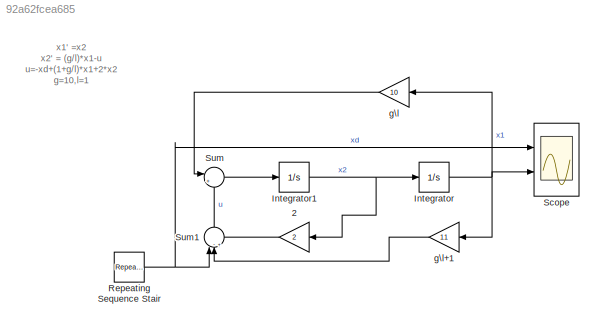
MODEL slx_92a62fcea685
KIND model
CONFIG AbsTol = auto
CONFIG EnableMultiTasking = off
CONFIG FixedStep = auto
CONFIG MaxStep = auto
CONFIG MinStep = auto
CONFIG RelTol = 1e-3
CONFIG SampleTimeConstraint = Unconstrained
CONFIG SolverName = VariableStepAuto
CONFIG StartTime = 0.0
CONFIG StopTime = 100
BLOCK [Gain] 2
  Gain = 2
BLOCK [Integrator] Integrator
  Ports = [1, 1]
BLOCK [Integrator] Integrator1
  Ports = [1, 1]
BLOCK [Reference] Repeating Sequence Stair  REF=simulink/Sources/Repeating
Sequence
Stair
  Ports = [0, 1]
  SourceBlock = simulink/Sources/Repeating\nSequence\nStair
  SourceProductBaseCode = SL
  SourceType = Repeating Sequence Stair
BLOCK [Scope] Scope
  Floating = off
  NumInputPorts = 2
  Ports = [2]
  ScopeSpecificationString = Simulink.scopes.TimeScopeBlockCfg('CurrentConfiguration', extmgr.ConfigurationSet(extmgr.Configuration('Core','General UI',true,'FigureColor',[1 1 1]),extmgr.Configuration('Core','Source UI',true),extmgr.Configuration('Sources','WiredSimulink',true),extmgr.Configuration('Visuals','Time Domain',true,'SerializedDisplays',{struct('MinYLimReal','-0.5','MaxYLimReal','4.5','YLabelReal','','MinYLimMag','...<+1396ch>
BLOCK [Sum] Sum
  Inputs = |+-
  Ports = [2, 1]
BLOCK [Sum] Sum1
  Inputs = |-++
  NameLocation = left
  Ports = [3, 1]
BLOCK [Gain] g\l
  Gain = 10
BLOCK [Gain] g\l+1
  Gain = 11
ANNOTATION (root): x1' =x2 x2' = (g/l)*x1-u u=-xd+(1+g/l)*x1+2*x2 g=10,l=1
LINE 2:1 -> Sum1:3
NET Integrator1:1 -> 2:1, Integrator:1
NET Integrator:1 -> Scope:2, g\l+1:1, g\l:1
NET Repeating Sequence Stair:1 -> Scope:1, Sum1:1
LINE Sum1:1 -> Sum:2
LINE Sum:1 -> Integrator1:1
LINE g\l+1:1 -> Sum1:2
LINE g\l:1 -> Sum:1
note: NET lines group one-source signal fan-out (src -> all destinations, sorted); 1:1 wires keep LINE
